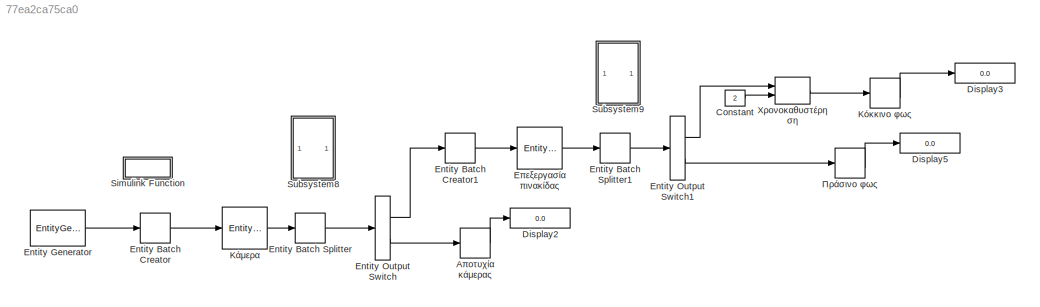
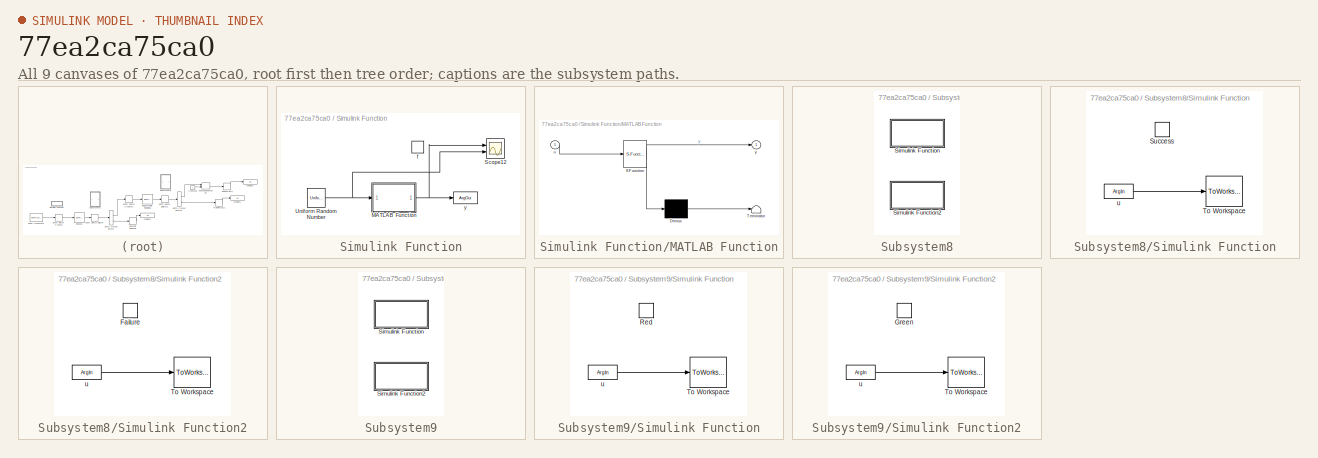
[diagram: thumbnail index - all 9 canvases of the model, root first then tree order]
MODEL slx_77ea2ca75ca0
KIND model
CONFIG AbsTol = auto
CONFIG EnableMultiTasking = off
CONFIG FixedStep = auto
CONFIG MaxStep = auto
CONFIG MinStep = auto
CONFIG RelTol = 1e-3
CONFIG SampleTimeConstraint = Unconstrained
CONFIG Solver = VariableStepAuto
CONFIG SolverName = VariableStepAuto
CONFIG StartTime = 0.0
CONFIG StopTime = 10.0
BLOCK [Constant] Constant
  Value = 2
BLOCK [Display] Display2
  Decimation = 1
  Format = long
  Ports = [1]
BLOCK [Display] Display3
  Decimation = 1
  Format = long
  Ports = [1]
BLOCK [Display] Display5
  Decimation = 1
  Format = long
  Ports = [1]
BLOCK [EntityBatchCreator] Entity Batch Creator
  InputPortMap = u0
  InputPortMessageModes = m
  NumberOfEntitiesInBatch = 9
  OutputPortMap = o4
  OutputPortMessageModes = m
  Ports = [1, 1]
BLOCK [EntityBatchCreator] Entity Batch Creator1
  EntityTypeName = B
  EntryAction = entity.result = ismember(entity.namber,G)+1;
  InputEntityName = b
  InputPortMap = u0
  InputPortMessageModes = m
  NumberOfEntitiesInBatch = 2
  OutputPortMap = o4
  OutputPortMessageModes = m
  Ports = [1, 1]
BLOCK [EntityBatchSplitter] Entity Batch Splitter
  ExitAction = if (entity.car==2)\n    Failure(entity.car)\nelse \n    Success(entity.car)\nend
  InputPortMap = u0
  InputPortMessageModes = m
  OutputPortMap = o4
  OutputPortMessageModes = m
  Ports = [1, 1]
BLOCK [EntityBatchSplitter] Entity Batch Splitter1
  ExitAction = if (entity.result==1)\n   Red(entity.namber)\nelseif (entity.result==2)\n    Green(entity.namber)\nend
  InputPortMap = u0
  InputPortMessageModes = m
  OutputPortMap = o4
  OutputPortMessageModes = m
  Ports = [1, 1]
BLOCK [EntityGenerator] Entity Generator
  AttributeInitialValue = 1|1|1
  AttributeName = namber|car|result
  EntityType = Structured
  EntityTypeName = Vehicles
  GenerateAction = entity.namber = randi([1000 9999]);\nentity.car = f();
  IntergenerationTimeAction = dt = DT;
  OutputPortMap = o3
  OutputPortMessageModes = m
  Period = 10
  Ports = [0, 1]
BLOCK [EntityOutputSwitch] Entity Output Switch
  InputPortMap = u1
  InputPortMessageModes = m
  OutputPortMap = o0,o1
  OutputPortMessageModes = m,m
  Ports = [1, 2]
  SwitchAttributeName = car
  SwitchingCriterion = From attribute
BLOCK [EntityOutputSwitch] Entity Output Switch1
  InputPortMap = u1
  InputPortMessageModes = m
  OutputPortMap = o0,o1
  OutputPortMessageModes = m,m
  Ports = [1, 2]
  SwitchAttributeName = result
  SwitchingCriterion = From attribute
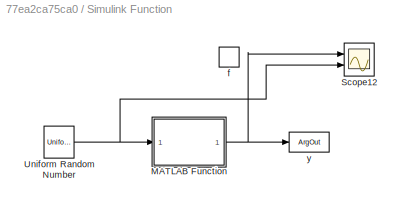
BLOCK [SubSystem] Simulink Function
  Ports = [0, 0, 0, 1]
  RequestExecContextInheritance = off
  TreatAsAtomicUnit = on
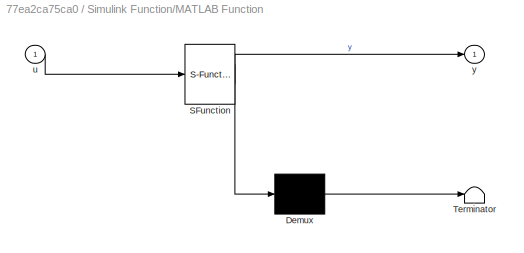
BLOCK [SubSystem] Simulink Function/MATLAB Function
  ErrorFcn = Stateflow.Translate.translate
  PermitHierarchicalResolution = ExplicitOnly
  Ports = [1, 1]
  RequestExecContextInheritance = off
  SFBlockType = MATLAB Function
  TreatAsAtomicUnit = on
BLOCK [Demux] Simulink Function/MATLAB Function/ Demux 
  Outputs = 1
  Ports = [1, 1]
BLOCK [S-Function] Simulink Function/MATLAB Function/ SFunction 
  EnableBusSupport = on
  FunctionName = sf_sfun
  PortCounts = [1 2]
  Ports = [1, 2]
  SFcnIsStateOwnerBlock = off
  SFunctionDeploymentMode = off
  Tag = Stateflow S-Function 4
BLOCK [Terminator] Simulink Function/MATLAB Function/ Terminator 
BLOCK [Inport] Simulink Function/MATLAB Function/u
  IconDisplay = Port number
BLOCK [Outport] Simulink Function/MATLAB Function/y
  IconDisplay = Port number
BLOCK [Scope] Simulink Function/Scope12
  Floating = off
  NumInputPorts = 2
  Ports = [2]
  ScopeSpecificationString = Simulink.scopes.TimeScopeBlockCfg('CurrentConfiguration', extmgr.ConfigurationSet(extmgr.Configuration('Core','General UI',true),extmgr.Configuration('Core','Source UI',true),extmgr.Configuration('Sources','WiredSimulink',true,'DataLoggingVariableName','ScopeData3'),extmgr.Configuration('Visuals','Time Domain',true,'SerializedDisplays',{struct('MinYLimReal','-0.19707','MaxYLimReal','2.24412','YLab...<+1541ch>
BLOCK [UniformRandomNumber] Simulink Function/Uniform Random Number
  Minimum = 0
BLOCK [TriggerPort] Simulink Function/f
  FunctionName = f
  FunctionVisibility = scoped
  IsSimulinkFunction = on
  Ports = []
  StatesWhenEnabling = held
  TriggerType = function-call
  VariantControl = (inherit)
BLOCK [ArgOut] Simulink Function/y
  ArgumentName = y
  DisableCoverage = on
BLOCK [SubSystem] Subsystem8
  Ports = []
  RequestExecContextInheritance = off
BLOCK [SubSystem] Subsystem8/Simulink Function
  Ports = [0, 0, 0, 1]
  RequestExecContextInheritance = off
  TreatAsAtomicUnit = on
BLOCK [TriggerPort] Subsystem8/Simulink Function/Success
  FunctionName = Success
  IsSimulinkFunction = on
  Ports = []
  StatesWhenEnabling = held
  TriggerType = function-call
  VariantControl = (inherit)
BLOCK [ToWorkspace] Subsystem8/Simulink Function/To Workspace
  MaxDataPoints = inf
  Ports = [1]
  SampleTime = -1
  Save2DSignal = 2-D array (concatenate along first dimension)
  VariableName = Success
BLOCK [ArgIn] Subsystem8/Simulink Function/u
  ArgumentName = u
  DisableCoverage = on
BLOCK [SubSystem] Subsystem8/Simulink Function2
  Ports = [0, 0, 0, 1]
  RequestExecContextInheritance = off
  TreatAsAtomicUnit = on
BLOCK [TriggerPort] Subsystem8/Simulink Function2/Failure
  FunctionName = Failure
  IsSimulinkFunction = on
  Ports = []
  StatesWhenEnabling = held
  TriggerType = function-call
  VariantControl = (inherit)
BLOCK [ToWorkspace] Subsystem8/Simulink Function2/To Workspace
  MaxDataPoints = inf
  Ports = [1]
  SampleTime = -1
  Save2DSignal = 2-D array (concatenate along first dimension)
  VariableName = Failure
BLOCK [ArgIn] Subsystem8/Simulink Function2/u
  ArgumentName = u
  DisableCoverage = on
BLOCK [SubSystem] Subsystem9
  Ports = []
  RequestExecContextInheritance = off
BLOCK [SubSystem] Subsystem9/Simulink Function
  Ports = [0, 0, 0, 1]
  RequestExecContextInheritance = off
  TreatAsAtomicUnit = on
BLOCK [TriggerPort] Subsystem9/Simulink Function/Red
  FunctionName = Red
  IsSimulinkFunction = on
  Ports = []
  StatesWhenEnabling = held
  TriggerType = function-call
  VariantControl = (inherit)
BLOCK [ToWorkspace] Subsystem9/Simulink Function/To Workspace
  MaxDataPoints = inf
  Ports = [1]
  SampleTime = -1
  Save2DSignal = 2-D array (concatenate along first dimension)
  VariableName = Red
BLOCK [ArgIn] Subsystem9/Simulink Function/u
  ArgumentName = u
  DisableCoverage = on
BLOCK [SubSystem] Subsystem9/Simulink Function2
  Ports = [0, 0, 0, 1]
  RequestExecContextInheritance = off
  TreatAsAtomicUnit = on
BLOCK [TriggerPort] Subsystem9/Simulink Function2/Green
  FunctionName = Green
  IsSimulinkFunction = on
  Ports = []
  StatesWhenEnabling = held
  TriggerType = function-call
  VariantControl = (inherit)
BLOCK [ToWorkspace] Subsystem9/Simulink Function2/To Workspace
  MaxDataPoints = inf
  Ports = [1]
  SampleTime = -1
  Save2DSignal = 2-D array (concatenate along first dimension)
  VariableName = Green
BLOCK [ArgIn] Subsystem9/Simulink Function2/u
  ArgumentName = u
  DisableCoverage = on
BLOCK [EntityTerminator] Αποτυχία κάμερας
  InputPortMap = u0
  InputPortMessageModes = m
  NumberEntitiesArrived = on
  OutputPortMap = o0
  Ports = [1, 1]
BLOCK [EntityServer] Επεξεργασία πινακίδας
  Capacity = 1
  ExitAction = entity.b(1).result=1;\nentity.b(2).result=2;
  InputPortMap = u2
  InputPortMessageModes = m
  OutputPortMap = o9
  OutputPortMessageModes = m
  Ports = [1, 1]
  ServiceTimeValue = .1
BLOCK [EntityServer] Κάμερα
  Capacity = 1
  EntryAction = entity.batch(f()).car = f();
  InputPortMap = u2
  InputPortMessageModes = m
  OutputPortMap = o9
  OutputPortMessageModes = m
  Ports = [1, 1]
  ServiceTimeValue = .2
BLOCK [EntityTerminator] Κόκκινο φως
  InputPortMap = u0
  InputPortMessageModes = m
  NumberEntitiesArrived = on
  OutputPortMap = o0
  Ports = [1, 1]
BLOCK [EntityTerminator] Πράσινο φως 
  InputPortMap = u0
  InputPortMessageModes = m
  NumberEntitiesArrived = on
  OutputPortMap = o0
  Ports = [1, 1]
BLOCK [EntityTransportDelay] Χρονοκαθυστέρηση
  InputPortMessageModes = m,n
  OutputPortMessageModes = m
  Ports = [2, 1]
LINE Constant:1 -> Χρονοκαθυστέρηση:2
LINE Entity Batch Creator1:1 -> Επεξεργασία πινακίδας:1
LINE Entity Batch Creator:1 -> Κάμερα:1
LINE Entity Batch Splitter1:1 -> Entity Output Switch1:1
LINE Entity Batch Splitter:1 -> Entity Output Switch:1
LINE Entity Generator:1 -> Entity Batch Creator:1
LINE Entity Output Switch1:1 -> Χρονοκαθυστέρηση:1
LINE Entity Output Switch1:2 -> Πράσινο φως :1
LINE Entity Output Switch:1 -> Entity Batch Creator1:1
LINE Entity Output Switch:2 -> Αποτυχία κάμερας:1
NET Simulink Function/MATLAB Function:1 -> Simulink Function/Scope12:1, Simulink Function/y:1
NET Simulink Function/Uniform Random Number:1 -> Simulink Function/MATLAB Function:1, Simulink Function/Scope12:2
LINE Subsystem8/Simulink Function/u:1 -> Subsystem8/Simulink Function/To Workspace:1
LINE Subsystem8/Simulink Function2/u:1 -> Subsystem8/Simulink Function2/To Workspace:1
LINE Subsystem9/Simulink Function/u:1 -> Subsystem9/Simulink Function/To Workspace:1
LINE Subsystem9/Simulink Function2/u:1 -> Subsystem9/Simulink Function2/To Workspace:1
LINE Αποτυχία κάμερας:1 -> Display2:1
LINE Επεξεργασία πινακίδας:1 -> Entity Batch Splitter1:1
LINE Κάμερα:1 -> Entity Batch Splitter:1
LINE Κόκκινο φως:1 -> Display3:1
LINE Πράσινο φως :1 -> Display5:1
LINE Χρονοκαθυστέρηση:1 -> Κόκκινο φως:1
note: NET lines group one-source signal fan-out (src -> all destinations, sorted); 1:1 wires keep LINE
CHART Simulink Function/MATLAB Function states=1 transitions=1
  STATE_LABEL 'eML_blk_kernel()'
  STATE_LABEL 'SCRIPT:\nfunction y = fcn(u)\nif ( u <=.2 )\n    y=2; \nelse\n    y=1;\nend\n'
